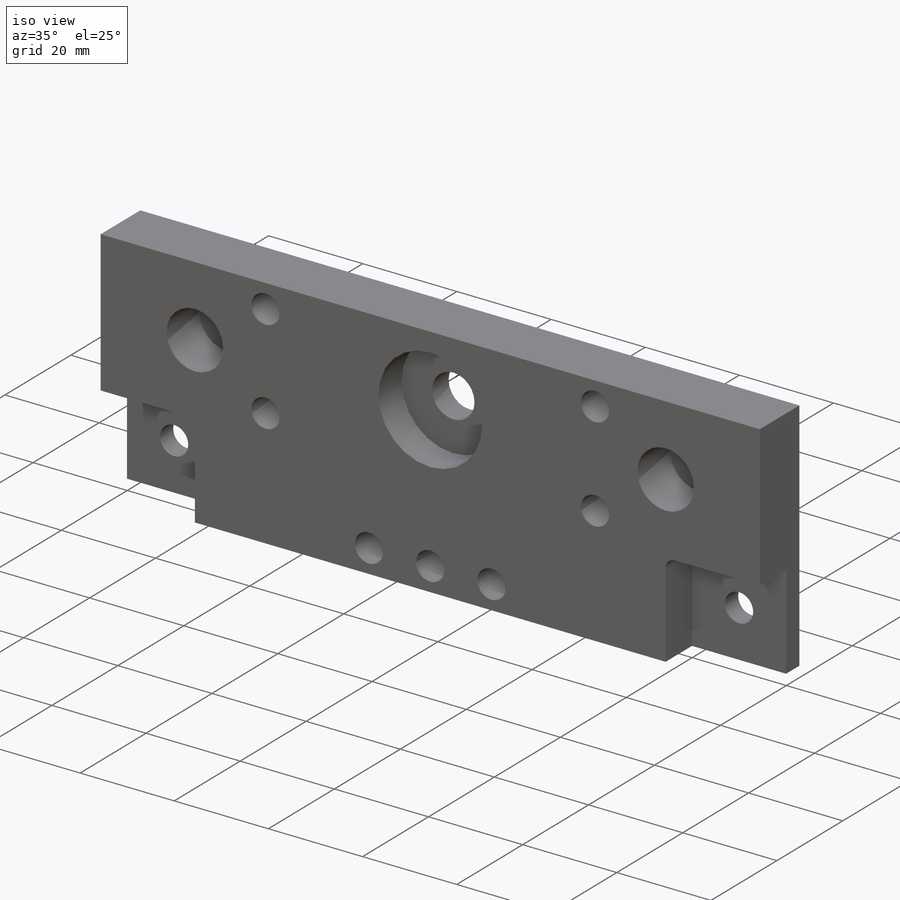
[diagram: iso view]
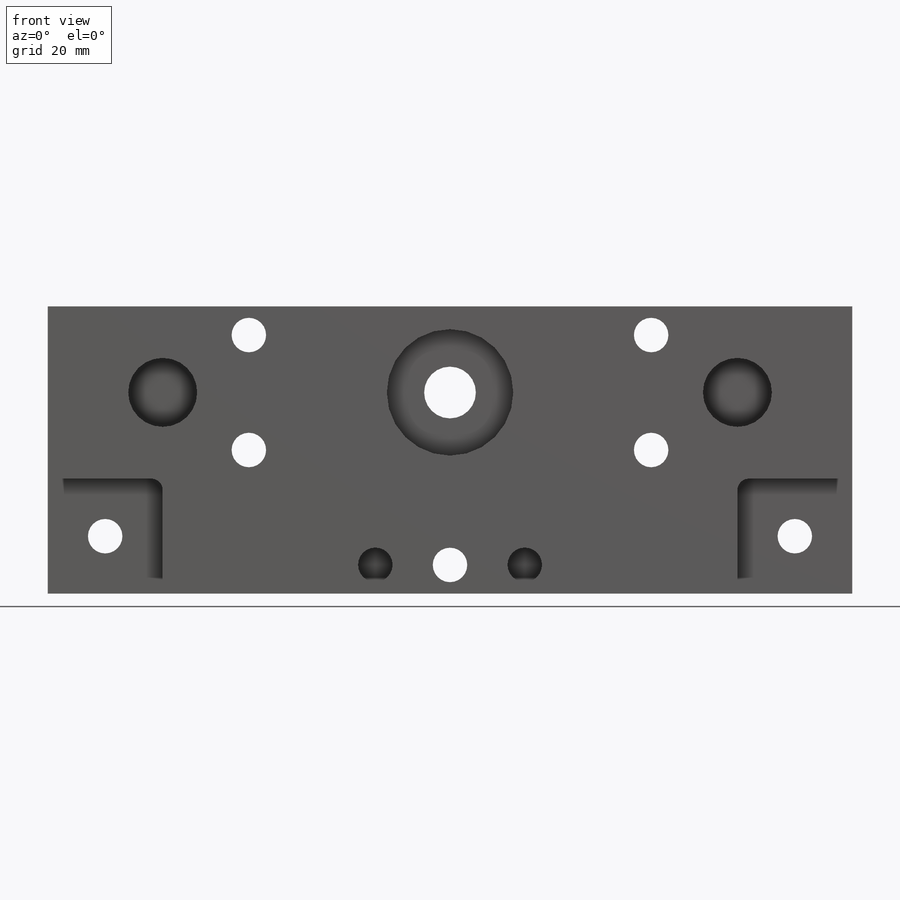
[diagram: front view]
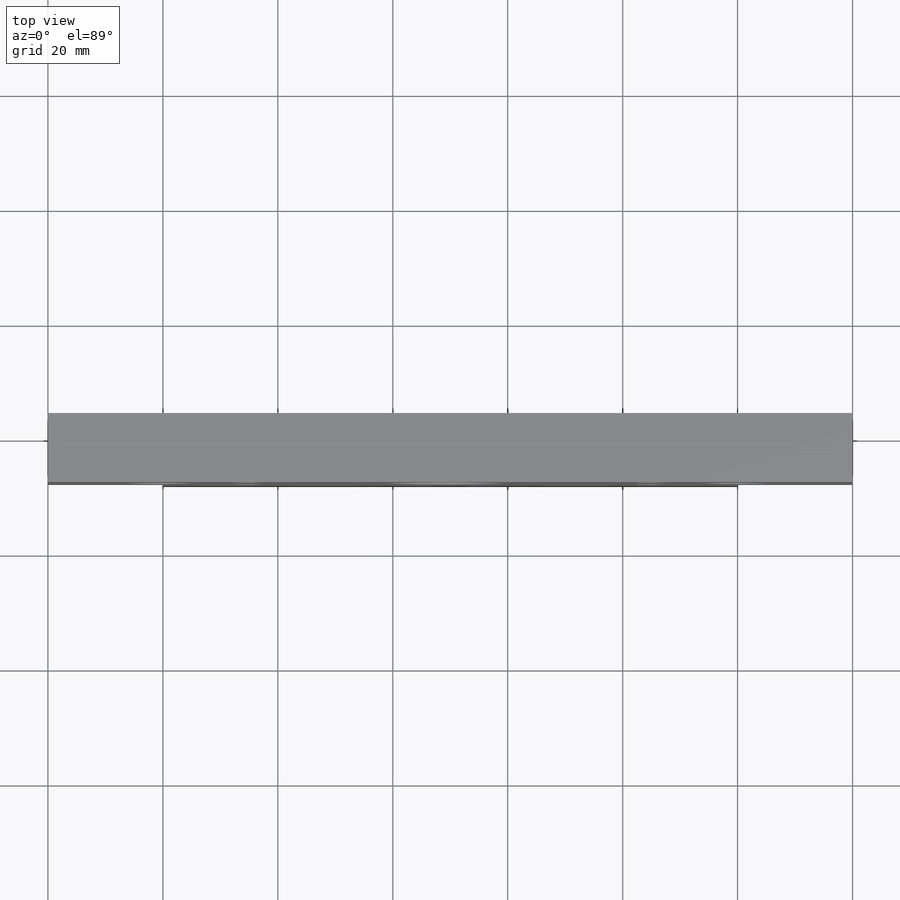
[diagram: top view]
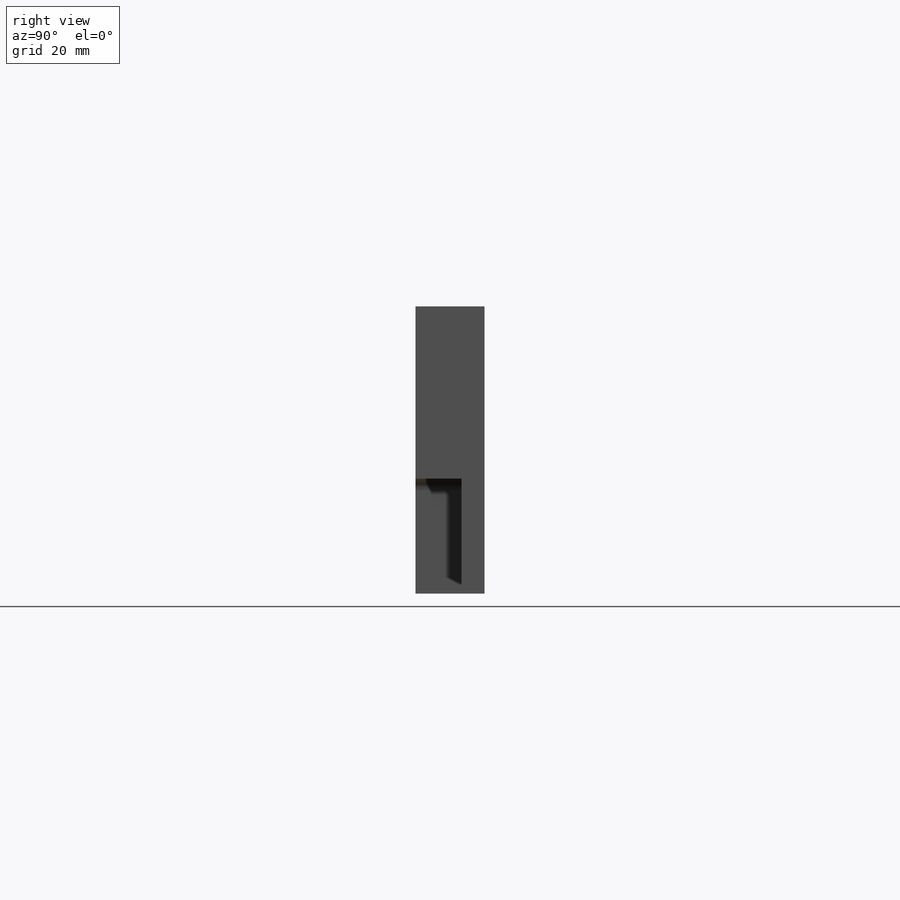
[diagram: right view]
SOLIDWORKS PART (.sldprt)
format: sldprt  version: not decoded by parser v0  size: 356,352 bytes
history: native  units: mm
features: sketch x10, cut_extrude x6, extrude x4, plane x3, fillet x2, material x1 (+10 scaffold rows collapsed)
feature tree (36):
  scaffold x10  (default folders/planes/origin — collapsed)
  material  "Matériau <non spécifié>"
  plane  "Plan de face"
  plane  "Plan de dessus"
  plane  "Plan de droite"
  sketch  "Esquisse1"  dims[c1.D3=22.0mm c1.D4=12.0mm c1.D5=12.0mm c1.D8=8.0mm c1.D9=8.0mm c1.D10=8.0mm c1.D11=8.0mm c1.D12=6.0mm c1.D13=6.0mm c1.D16=6.0mm c1.D17=6.0mm c2.D8=6.0mm c2.D11=6.0mm c2.D14=6.0mm c2.D1=30.0mm c2.D2=140.0mm c2.D6=100.0mm c2.D7=50.0mm c2.D12=50.0mm c2.D13=50.0mm c3.D14=25.0mm c3.D15=25.0mm c3.D9=35.0mm c3.D10=35.0mm c3.D18=20.0mm c3.D19=10.0mm c3.D20=20.0mm c3.D21=10.0mm c4.D14=10.0mm c4.D15=10.0mm]
  extrude  "Extrusion1"  Depth=8mm
  sketch  "Esquisse2"  dims[D1=140.0mm D2=50.0mm]
  extrude  "Boss.-Extru.1"  Depth=4mm
  sketch  "Esquisse3"  dims[c1.D1=6.0mm c1.D2=6.0mm c1.D4=6.0mm c1.D3=10.0mm c2.D4=10.0mm]
  cut_extrude  "Enlèv. mat.-Extru.1"  [1 undecoded]
  sketch  "Esquisse4"
  cut_extrude  "Enlèv. mat.-Extru.2"  [1 undecoded]
  sketch  "Esquisse5"  dims[D1=20.0mm D2=20.0mm]
  extrude  "Boss.-Extru.2"  Depth=8mm
  sketch  "Esquisse6"  dims[D2=6.0mm D3=6.0mm D1=5.0mm D4=26.0mm D5=13.0mm]
  cut_extrude  "Enlèv. mat.-Extru.3"  Depth=8mm
  sketch  "Esquisse7"
  extrude  "Boss.-Extru.3"  Depth=5mm
  sketch  "Esquisse8"  dims[D1=9.0mm]
  cut_extrude  "Enlèv. mat.-Extru.4"  [1 undecoded]
  sketch  "Esquisse9"
  cut_extrude  "Enlèv. mat.-Extru.5"  Depth=2mm
  sketch  "Esquisse10"  dims[D1=6.0mm D2=5.0mm D3=70.0mm D4=140.0mm]
  cut_extrude  "Enlèv. mat.-Extru.6"  [1 undecoded]
  fillet  "Congé1"  Radius=2mm
  fillet  "Congé2"  Radius=2mm
decode coverage: 15 of 22 modeling features carry decoded parameters
note: 4 parameter values undecoded
summary: no parameter record found for 4 features
note: suppression state not decoded; provenance and decode notes live in map.json
